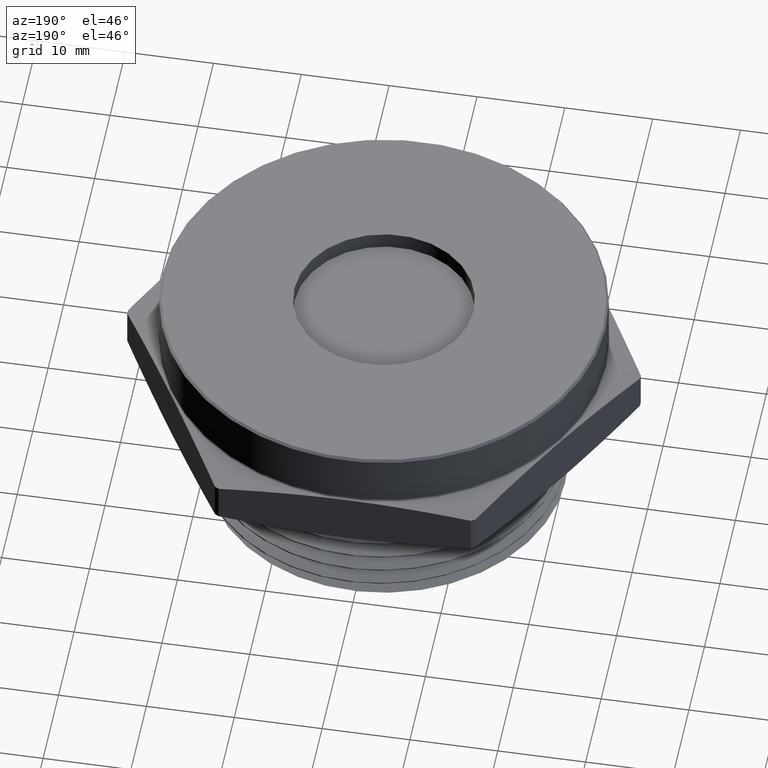
[diagram: clean part render]
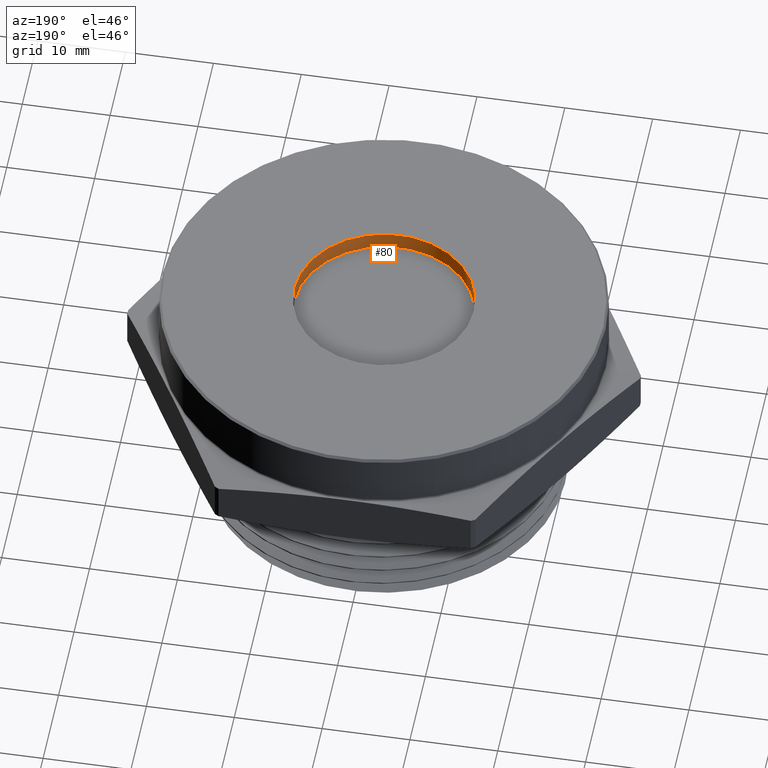
[diagram: same view with one face highlighted and labeled with its STEP entity id]
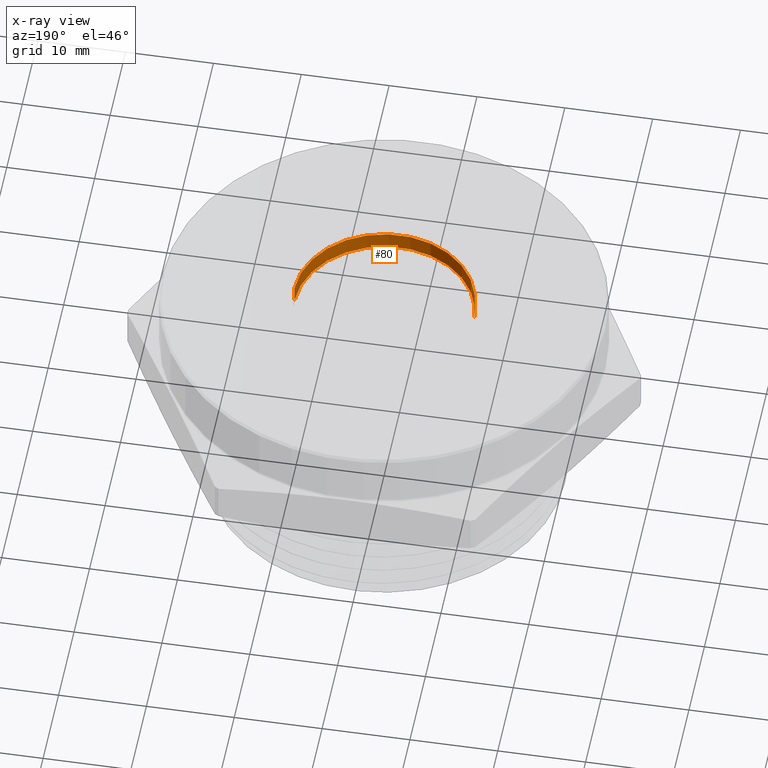
[diagram: x-ray of the same camera — body ghosted, the highlighted face saturated]
A machine part, auxiliary view. The second image highlights one B-rep face of the part: STEP entity #80.
The next image is the same camera in x-ray: the body ghosted, the highlighted face saturated — about 0% of this face is hidden behind the body in this view.
In plain terms, the highlighted cylindrical surface (partial cylindrical patch) has radius 10.2108 mm, axis along (-0, -0, 1).
Its self-contained STEP definition (entity closure, byte-faithful):
#5 = ORIENTED_EDGE ( 'NONE', *, *, #2913, .F. ) ;
#6 = ORIENTED_EDGE ( 'NONE', *, *, #2916, .T. ) ;
#7 = ORIENTED_EDGE ( 'NONE', *, *, #2931, .T. ) ;
#8 = ORIENTED_EDGE ( 'NONE', *, *, #2907, .F. ) ;
#80 = ADVANCED_FACE ( 'NONE', ( #2301 ), #2303, .F. ) ;
#323 = AXIS2_PLACEMENT_3D ( 'NONE', #3254, #3253, #3256 ) ;
#355 = AXIS2_PLACEMENT_3D ( 'NONE', #2393, #2394, #2395 ) ;
#363 = AXIS2_PLACEMENT_3D ( 'NONE', #2534, #2535, #2536 ) ;
#499 = VERTEX_POINT ( 'NONE', #1935 ) ;
#501 = VERTEX_POINT ( 'NONE', #1936 ) ;
#509 = VERTEX_POINT ( 'NONE', #1944 ) ;
#534 = VERTEX_POINT ( 'NONE', #1969 ) ;
#575 = CIRCLE ( 'NONE', #355, 0.4020000000000001400 ) ;
#578 = LINE ( 'NONE', #2384, #580 ) ;
#580 = VECTOR ( 'NONE', #2391, 39.37007874015748100 ) ;
#595 = CIRCLE ( 'NONE', #363, 0.4020000000000001400 ) ;
#692 = LINE ( 'NONE', #2368, #696 ) ;
#696 = VECTOR ( 'NONE', #2376, 39.37007874015748100 ) ;
#746 = EDGE_LOOP ( 'NONE', ( #5, #6, #7, #8 ) ) ;
#1935 = CARTESIAN_POINT ( 'NONE',  ( -0.4020000000000001400, 4.923080132572361300E-017, 0.4899999999999999900 ) ) ;
#1936 = CARTESIAN_POINT ( 'NONE',  ( 0.4020000000000001400, 0.0000000000000000000, 0.4899999999999999900 ) ) ;
#1944 = CARTESIAN_POINT ( 'NONE',  ( -0.4020000000000001400, 4.923080132572361300E-017, 0.4119999999999999200 ) ) ;
#1969 = CARTESIAN_POINT ( 'NONE',  ( 0.4020000000000001400, 0.0000000000000000000, 0.4119999999999999200 ) ) ;
#2301 = FACE_OUTER_BOUND ( 'NONE', #746, .T. ) ;
#2303 = CYLINDRICAL_SURFACE ( 'NONE', #323, 0.4020000000000001400 ) ;
#2368 = CARTESIAN_POINT ( 'NONE',  ( 0.4020000000000001400, 0.0000000000000000000, 0.6741763569927300400 ) ) ;
#2376 = DIRECTION ( 'NONE',  ( -0.0000000000000000000, -0.0000000000000000000, 1.000000000000000000 ) ) ;
#2384 = CARTESIAN_POINT ( 'NONE',  ( -0.4020000000000001400, 4.923080132572361300E-017, 0.6741763569927300400 ) ) ;
#2391 = DIRECTION ( 'NONE',  ( -0.0000000000000000000, -0.0000000000000000000, 1.000000000000000000 ) ) ;
#2393 = CARTESIAN_POINT ( 'NONE',  ( 0.0000000000000000000, 0.0000000000000000000, 0.4119999999999999200 ) ) ;
#2394 = DIRECTION ( 'NONE',  ( -0.0000000000000000000, -0.0000000000000000000, 1.000000000000000000 ) ) ;
#2395 = DIRECTION ( 'NONE',  ( 1.000000000000000000, 0.0000000000000000000, 0.0000000000000000000 ) ) ;
#2534 = CARTESIAN_POINT ( 'NONE',  ( 0.0000000000000000000, 0.0000000000000000000, 0.4899999999999999900 ) ) ;
#2535 = DIRECTION ( 'NONE',  ( -0.0000000000000000000, -0.0000000000000000000, 1.000000000000000000 ) ) ;
#2536 = DIRECTION ( 'NONE',  ( 1.000000000000000000, 0.0000000000000000000, 0.0000000000000000000 ) ) ;
#2907 = EDGE_CURVE ( 'NONE', #534, #501, #692, .T. ) ;
#2913 = EDGE_CURVE ( 'NONE', #509, #534, #575, .T. ) ;
#2916 = EDGE_CURVE ( 'NONE', #509, #499, #578, .T. ) ;
#2931 = EDGE_CURVE ( 'NONE', #499, #501, #595, .T. ) ;
#3253 = DIRECTION ( 'NONE',  ( -0.0000000000000000000, -0.0000000000000000000, 1.000000000000000000 ) ) ;
#3254 = CARTESIAN_POINT ( 'NONE',  ( 0.0000000000000000000, 0.0000000000000000000, 0.6741763569927300400 ) ) ;
#3256 = DIRECTION ( 'NONE',  ( 1.000000000000000000, 0.0000000000000000000, 0.0000000000000000000 ) ) ;